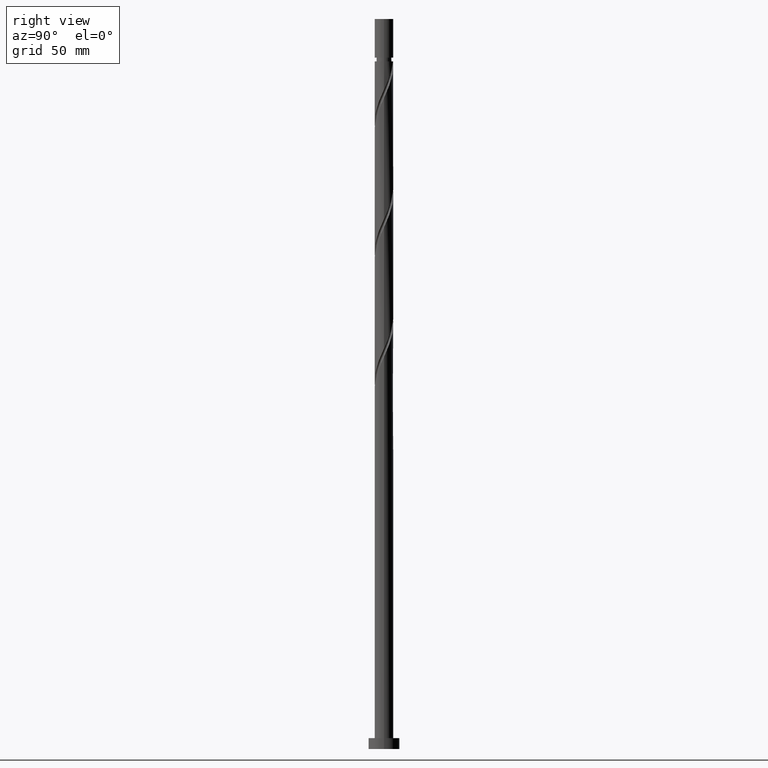
[diagram: clean part render]
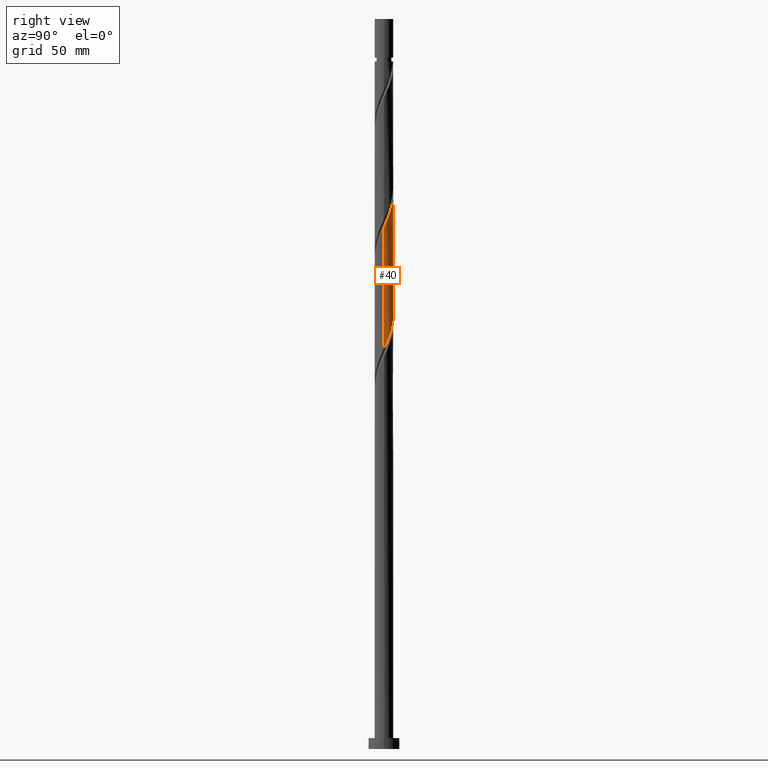
[diagram: same view with one face highlighted and labeled with its STEP entity id]
A machine part, right view. The second image highlights one B-rep face of the part: STEP entity #40.
In plain terms, the highlighted cylindrical surface (edge-blend (fillet) strip) has radius 6 mm, axis along (-0, -0, -1).
Its self-contained STEP definition (entity closure, byte-faithful):
#6 = EDGE_LOOP ( 'NONE', ( #1727, #1938, #943, #1953 ) ) ;
#10 = CARTESIAN_POINT ( 'NONE',  ( -4.225698837597083646, 4.259515152447598041, 289.0667943806600988 ) ) ;
#21 = CARTESIAN_POINT ( 'NONE',  ( 6.000000000000000888, 6.460034579606212606E-15, 257.8694913586569442 ) ) ;
#27 = CARTESIAN_POINT ( 'NONE',  ( 1.727128715119907731, 5.776352346998739229, 352.8688777139934132 ) ) ;
#32 = CARTESIAN_POINT ( 'NONE',  ( -3.313513036608680018, 5.002062710145120050, 286.4626277139934700 ) ) ;
#40 = ADVANCED_FACE ( 'NONE', ( #299 ), #951, .T. ) ;
#48 = CARTESIAN_POINT ( 'NONE',  ( 5.534082545362442929, 2.318173932455209751, 341.1501277139935269 ) ) ;
#56 = CARTESIAN_POINT ( 'NONE',  ( -1.147080348408323625, 5.889329900276893959, 281.2542943806600988 ) ) ;
#60 = CARTESIAN_POINT ( 'NONE',  ( 6.000000000000010658, 7.166426127693521270E-15, 335.8890974026634240 ) ) ;
#124 = EDGE_CURVE ( 'NONE', #270, #1869, #2037, .T. ) ;
#138 = EDGE_CURVE ( 'NONE', #270, #1716, #1667, .T. ) ;
#149 =( BOUNDED_CURVE ( )  B_SPLINE_CURVE ( 2, ( #1448, #650, #2093, #640, #286, #1576, #776, #478, #1285, #1130, #10, #857, #32, #1468, #687, #342, #56, #1185, #708, #823, #1829, #364, #1006, #1331, #488, #1650, #520, #180, #1783, #374, #1791, #332, #985, #1490, #1977 ),
 .UNSPECIFIED., .F., .T. ) 
 B_SPLINE_CURVE_WITH_KNOTS ( ( 3, 2, 2, 2, 2, 2, 2, 2, 2, 2, 2, 2, 2, 2, 2, 2, 2, 3 ),
 ( 0.6795286902180873723, 0.6796875000000000000, 0.6875000000000000000, 0.6953125000000000000, 0.7031250000000000000, 0.7109375000000000000, 0.7187500000000000000, 0.7265625000000000000, 0.7343750000000000000, 0.7421875000000000000, 0.7500000000000000000, 0.7578125000000000000, 0.7656250000000000000, 0.7734375000000000000, 0.7812500000000000000, 0.7890625000000000000, 0.7968750000000000000, 0.8045286902180871502 ),
 .UNSPECIFIED. ) 
 CURVE ( )  GEOMETRIC_REPRESENTATION_ITEM ( )  RATIONAL_B_SPLINE_CURVE ( ( 0.9089165573359410111, 0.9090019243628456591, 0.9090909090909373713, 0.9047133878838434784, 0.9090909090909373713, 0.9047133878838434784, 0.9090909090909373713, 0.9047133878838434784, 0.9090909090909373713, 0.9047133878838434784, 0.9090909090909373713, 0.9047133878838434784, 0.9090909090909373713, 0.9047133878838434784, 0.9090909090909373713, 0.9047133878838434784, 0.9090909090909373713, 0.9047133878838434784, 0.9090909090909373713, 0.9047133878838434784, 0.9090909090909373713, 0.9047133878838434784, 0.9090909090909373713, 0.9047133878838434784, 0.9090909090909373713, 0.9047133878838434784, 0.9090909090909373713, 0.9047133878838434784, 0.9090909090909373713, 0.9047133878838434784, 0.9090909090909373713, 0.9047133878838434784, 0.9090909090909373713, 0.9048023726119353016, 0.9089165573359407890 ) ) 
 REPRESENTATION_ITEM ( '' )  );
#174 = CARTESIAN_POINT ( 'NONE',  ( 2.273990787862929519, 5.552383803080859437, 351.5667943806601556 ) ) ;
#180 = CARTESIAN_POINT ( 'NONE',  ( 4.675710161127275555, 3.806173212611410506, 266.9313777139933563 ) ) ;
#197 = CARTESIAN_POINT ( 'NONE',  ( 1.147080348408330286, 5.889329900276901064, 354.1709610473269549 ) ) ;
#209 = CARTESIAN_POINT ( 'NONE',  ( -0.6148554727878222659, 5.997597250804064473, 358.0772110473267276 ) ) ;
#219 = CARTESIAN_POINT ( 'NONE',  ( 5.997597250804064473, 0.6148554727878225989, 337.2438777139935269 ) ) ;
#270 = VERTEX_POINT ( 'NONE', #60 ) ;
#286 = CARTESIAN_POINT ( 'NONE',  ( -5.880000000000000782, 1.193984924527948133, 296.8792943806600988 ) ) ;
#299 = FACE_OUTER_BOUND ( 'NONE', #6, .T. ) ;
#332 = CARTESIAN_POINT ( 'NONE',  ( 5.776352346998733012, 1.727128715119902846, 261.7230443806601556 ) ) ;
#342 = CARTESIAN_POINT ( 'NONE',  ( -1.727128715119903291, 5.776352346998733012, 282.5563777139933563 ) ) ;
#358 = CARTESIAN_POINT ( 'NONE',  ( -6.000000000000007994, 0.5788788895738945506, 376.2797839639139852 ) ) ;
#364 = CARTESIAN_POINT ( 'NONE',  ( 1.773114376268073222, 5.762402749195945972, 274.7438777139935269 ) ) ;
#369 = CARTESIAN_POINT ( 'NONE',  ( 5.880000000000009663, 1.193984924527947467, 338.5459610473268981 ) ) ;
#374 = CARTESIAN_POINT ( 'NONE',  ( 5.328415259162967210, 2.820852860605948198, 264.3272110473268413 ) ) ;
#389 = CARTESIAN_POINT ( 'NONE',  ( -2.318173932455209751, 5.534082545362442929, 361.9834610473268981 ) ) ;
#478 = CARTESIAN_POINT ( 'NONE',  ( -5.305762341528927450, 2.863233488642340951, 292.9730443806601556 ) ) ;
#488 = CARTESIAN_POINT ( 'NONE',  ( 3.353276816205135180, 4.975493402055835901, 270.8376277139934132 ) ) ;
#500 = CARTESIAN_POINT ( 'NONE',  ( -2.863233488642343616, 5.305762341528934556, 363.2855443806600420 ) ) ;
#512 = CARTESIAN_POINT ( 'NONE',  ( -5.776352346998740117, 1.727128715119907287, 373.7022110473267844 ) ) ;
#520 = CARTESIAN_POINT ( 'NONE',  ( 4.259515152447598041, 4.225698837597083646, 268.2334610473268413 ) ) ;
#526 = CARTESIAN_POINT ( 'NONE',  ( -3.353276816205137401, 4.975493402055846559, 364.5876277139934700 ) ) ;
#527 = CARTESIAN_POINT ( 'NONE',  ( 0.000000000000000000, 0.000000000000000000, 470.0000000000000568 ) ) ;
#627 = EDGE_CURVE ( 'NONE', #1621, #1716, #149, .T. ) ;
#640 = CARTESIAN_POINT ( 'NONE',  ( -5.997597250804057367, 0.6148554727878215997, 298.1813777139934700 ) ) ;
#650 = CARTESIAN_POINT ( 'NONE',  ( -6.000000000000001776, 0.01195592024557846911, 299.5098044708063867 ) ) ;
#662 = LINE ( 'NONE', #1510, #1029 ) ;
#679 = CARTESIAN_POINT ( 'NONE',  ( -4.675710161127277331, 3.806173212611418499, 368.4938777139934700 ) ) ;
#687 = CARTESIAN_POINT ( 'NONE',  ( -2.273990787862925522, 5.552383803080852331, 283.8584610473267844 ) ) ;
#699 = CARTESIAN_POINT ( 'NONE',  ( 6.000000000000010658, 0.01195592024559150382, 335.9154509571806670 ) ) ;
#701 = CARTESIAN_POINT ( 'NONE',  ( -5.552383803080859437, 2.273990787862931295, 372.4001277139935837 ) ) ;
#708 = CARTESIAN_POINT ( 'NONE',  ( 0.02391174554553877549, 5.999952352179554360, 278.6501277139934132 ) ) ;
#750 = EDGE_CURVE ( 'NONE', #1869, #1621, #662, .T. ) ;
#776 = CARTESIAN_POINT ( 'NONE',  ( -5.534082545362434047, 2.318173932455208419, 294.2751277139933563 ) ) ;
#801 = CARTESIAN_POINT ( 'NONE',  ( -6.000000000000000888, 1.084189877367839839E-14, 299.5361580253236298 ) ) ;
#823 = CARTESIAN_POINT ( 'NONE',  ( 0.6148554727878217108, 5.997597250804057367, 277.3480443806601556 ) ) ;
#840 = CARTESIAN_POINT ( 'NONE',  ( -0.02391174554553508053, 5.999952352179564130, 356.7751277139935269 ) ) ;
#857 = CARTESIAN_POINT ( 'NONE',  ( -3.806173212611412282, 4.675710161127272002, 287.7647110473267844 ) ) ;
#863 = CARTESIAN_POINT ( 'NONE',  ( -5.002062710145125379, 3.313513036608686235, 369.7959610473268413 ) ) ;
#874 = CARTESIAN_POINT ( 'NONE',  ( 6.000000000000000888, 7.347880794884120722E-16, 470.0000000000000568 ) ) ;
#943 = ORIENTED_EDGE ( 'NONE', *, *, #627, .F. ) ;
#951 = CYLINDRICAL_SURFACE ( 'NONE', #2026, 6.000000000000000888 ) ;
#985 = CARTESIAN_POINT ( 'NONE',  ( 5.889329900276893071, 1.147080348408325179, 260.4209610473267844 ) ) ;
#1006 = CARTESIAN_POINT ( 'NONE',  ( 2.318173932455210196, 5.534082545362434047, 273.4417943806600988 ) ) ;
#1011 = CARTESIAN_POINT ( 'NONE',  ( 4.645224462582758562, 3.843320143767927188, 345.0563777139934700 ) ) ;
#1022 = CARTESIAN_POINT ( 'NONE',  ( 2.820852860605953083, 5.328415259162971651, 350.2647110473268413 ) ) ;
#1029 = VECTOR ( 'NONE', #1988, 1000.000000000000000 ) ;
#1034 = CARTESIAN_POINT ( 'NONE',  ( 3.313513036608687123, 5.002062710145125379, 348.9626277139934700 ) ) ;
#1130 = CARTESIAN_POINT ( 'NONE',  ( -4.645224462582750569, 3.843320143767924524, 290.3688777139934132 ) ) ;
#1153 = CARTESIAN_POINT ( 'NONE',  ( -1.773114376268075221, 5.762402749195952190, 360.6813777139933563 ) ) ;
#1154 = DIRECTION ( 'NONE',  ( -1.000000000000000000, 0.000000000000000000, 0.000000000000000000 ) ) ;
#1169 = CARTESIAN_POINT ( 'NONE',  ( -1.193984924527947022, 5.880000000000009663, 359.3792943806601556 ) ) ;
#1179 = CARTESIAN_POINT ( 'NONE',  ( -3.843320143767927632, 4.645224462582758562, 365.8897110473267844 ) ) ;
#1185 = CARTESIAN_POINT ( 'NONE',  ( -0.5670319816967441806, 6.002307453555054906, 279.9522110473268981 ) ) ;
#1271 = CARTESIAN_POINT ( 'NONE',  ( 6.000000000000010658, 7.166426127693521270E-15, 335.8890974026634808 ) ) ;
#1285 = CARTESIAN_POINT ( 'NONE',  ( -4.975493402055838565, 3.353276816205132072, 291.6709610473268413 ) ) ;
#1318 = CARTESIAN_POINT ( 'NONE',  ( -6.000000000000009770, -8.890468824212770949E-16, 377.5557640693300527 ) ) ;
#1323 = CARTESIAN_POINT ( 'NONE',  ( 4.225698837597090751, 4.259515152447600705, 346.3584610473268413 ) ) ;
#1331 = CARTESIAN_POINT ( 'NONE',  ( 2.863233488642341840, 5.305762341528926562, 272.1397110473268413 ) ) ;
#1336 = CARTESIAN_POINT ( 'NONE',  ( 4.975493402055846559, 3.353276816205138289, 343.7542943806602125 ) ) ;
#1346 = CARTESIAN_POINT ( 'NONE',  ( 5.305762341528934556, 2.863233488642342284, 342.4522110473268413 ) ) ;
#1358 = CARTESIAN_POINT ( 'NONE',  ( -6.000000000000009770, -8.890468824212770949E-16, 377.5557640693300527 ) ) ;
#1386 = VECTOR ( 'NONE', #1656, 1000.000000000000000 ) ;
#1448 = CARTESIAN_POINT ( 'NONE',  ( -6.000000000000000888, 1.084189877367839839E-14, 299.5361580253236298 ) ) ;
#1468 = CARTESIAN_POINT ( 'NONE',  ( -2.820852860605946866, 5.328415259162967210, 285.1605443806601556 ) ) ;
#1484 = CARTESIAN_POINT ( 'NONE',  ( -4.259515152447603370, 4.225698837597089863, 367.1917943806602125 ) ) ;
#1490 = CARTESIAN_POINT ( 'NONE',  ( 6.000000000000001776, 0.5788788895738917750, 259.1454714640730117 ) ) ;
#1504 = CARTESIAN_POINT ( 'NONE',  ( -5.328415259162974316, 2.820852860605950863, 371.0980443806601556 ) ) ;
#1510 = CARTESIAN_POINT ( 'NONE',  ( -6.000000000000000888, 0.000000000000000000, 470.0000000000000568 ) ) ;
#1576 = CARTESIAN_POINT ( 'NONE',  ( -5.762402749195945972, 1.773114376268074333, 295.5772110473268413 ) ) ;
#1621 = VERTEX_POINT ( 'NONE', #801 ) ;
#1650 = CARTESIAN_POINT ( 'NONE',  ( 3.843320143767924968, 4.645224462582749680, 269.5355443806600988 ) ) ;
#1656 = DIRECTION ( 'NONE',  ( -0.000000000000000000, -0.000000000000000000, -1.000000000000000000 ) ) ;
#1667 = LINE ( 'NONE', #874, #1386 ) ;
#1716 = VERTEX_POINT ( 'NONE', #21 ) ;
#1727 = ORIENTED_EDGE ( 'NONE', *, *, #124, .F. ) ;
#1783 = CARTESIAN_POINT ( 'NONE',  ( 5.002062710145120050, 3.313513036608679574, 265.6292943806601556 ) ) ;
#1791 = CARTESIAN_POINT ( 'NONE',  ( 5.552383803080853220, 2.273990787862922414, 263.0251277139934132 ) ) ;
#1811 = CARTESIAN_POINT ( 'NONE',  ( -5.889329900276901064, 1.147080348408326733, 375.0042943806601556 ) ) ;
#1812 = DIRECTION ( 'NONE',  ( -0.000000000000000000, -0.000000000000000000, -1.000000000000000000 ) ) ;
#1823 = CARTESIAN_POINT ( 'NONE',  ( 5.999952352179564130, 0.02391174554553549686, 335.9417943806602693 ) ) ;
#1829 = CARTESIAN_POINT ( 'NONE',  ( 1.193984924527949021, 5.880000000000000782, 276.0459610473268413 ) ) ;
#1869 = VERTEX_POINT ( 'NONE', #1318 ) ;
#1938 = ORIENTED_EDGE ( 'NONE', *, *, #138, .T. ) ;
#1953 = ORIENTED_EDGE ( 'NONE', *, *, #750, .F. ) ;
#1969 = CARTESIAN_POINT ( 'NONE',  ( 5.762402749195953966, 1.773114376268072778, 339.8480443806601556 ) ) ;
#1977 = CARTESIAN_POINT ( 'NONE',  ( 6.000000000000000888, 6.460034579606212606E-15, 257.8694913586569442 ) ) ;
#1983 = CARTESIAN_POINT ( 'NONE',  ( 3.806173212611417611, 4.675710161127278219, 347.6605443806600420 ) ) ;
#1988 = DIRECTION ( 'NONE',  ( -0.000000000000000000, -0.000000000000000000, -1.000000000000000000 ) ) ;
#1993 = CARTESIAN_POINT ( 'NONE',  ( 0.5670319816967465121, 6.002307453555062011, 355.4730443806601556 ) ) ;
#2026 = AXIS2_PLACEMENT_3D ( 'NONE', #527, #1812, #1154 ) ;
#2037 =( BOUNDED_CURVE ( )  B_SPLINE_CURVE ( 2, ( #1271, #699, #1823, #219, #369, #1969, #48, #1346, #1336, #1011, #1323, #1983, #1034, #1022, #174, #27, #197, #1993, #840, #209, #1169, #1153, #389, #500, #526, #1179, #1484, #679, #863, #1504, #701, #512, #1811, #358, #1358 ),
 .UNSPECIFIED., .F., .T. ) 
 B_SPLINE_CURVE_WITH_KNOTS ( ( 3, 2, 2, 2, 2, 2, 2, 2, 2, 2, 2, 2, 2, 2, 2, 2, 2, 3 ),
 ( 0.4295286902180875943, 0.4296875000000000000, 0.4375000000000000000, 0.4453125000000000000, 0.4531250000000000000, 0.4609375000000000000, 0.4687500000000000000, 0.4765625000000000000, 0.4843750000000000000, 0.4921875000000000000, 0.5000000000000000000, 0.5078125000000000000, 0.5156250000000000000, 0.5234375000000000000, 0.5312500000000000000, 0.5390625000000000000, 0.5468750000000000000, 0.5545286902180871502 ),
 .UNSPECIFIED. ) 
 CURVE ( )  GEOMETRIC_REPRESENTATION_ITEM ( )  RATIONAL_B_SPLINE_CURVE ( ( 0.9089165573359462291, 0.9090019243628508772, 0.9090909090909424783, 0.9047133878838486964, 0.9090909090909424783, 0.9047133878838486964, 0.9090909090909424783, 0.9047133878838486964, 0.9090909090909424783, 0.9047133878838486964, 0.9090909090909424783, 0.9047133878838486964, 0.9090909090909424783, 0.9047133878838486964, 0.9090909090909424783, 0.9047133878838486964, 0.9090909090909424783, 0.9047133878838486964, 0.9090909090909424783, 0.9047133878838486964, 0.9090909090909424783, 0.9047133878838486964, 0.9090909090909424783, 0.9047133878838486964, 0.9090909090909424783, 0.9047133878838486964, 0.9090909090909424783, 0.9047133878838486964, 0.9090909090909424783, 0.9047133878838486964, 0.9090909090909424783, 0.9047133878838486964, 0.9090909090909424783, 0.9048023726119405197, 0.9089165573359458961 ) ) 
 REPRESENTATION_ITEM ( '' )  );
#2093 = CARTESIAN_POINT ( 'NONE',  ( -5.999952352179554360, 0.02391174554553919182, 299.4834610473268413 ) ) ;